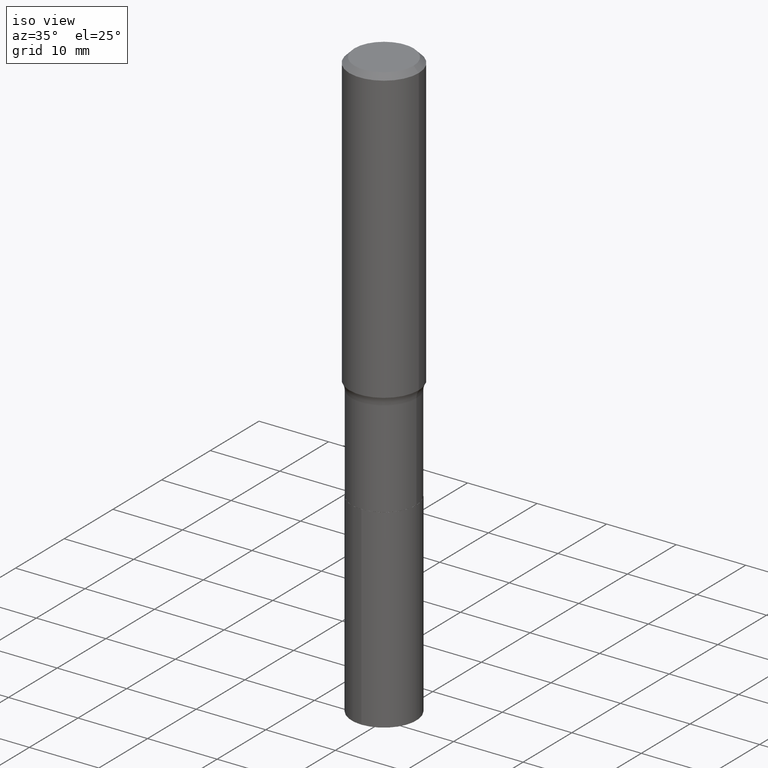
[diagram: clean part render]
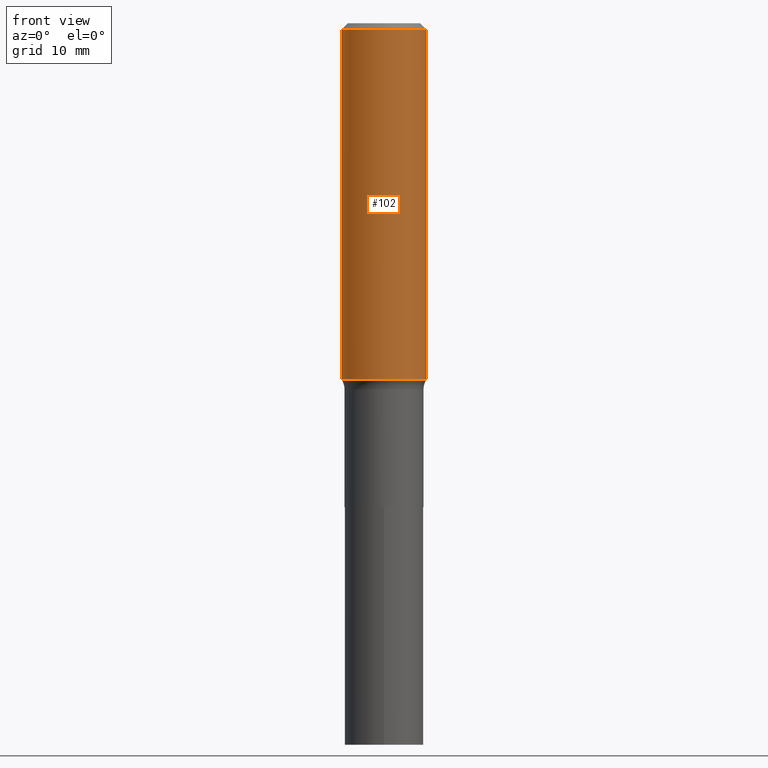
[diagram: tour spotlight — one face highlighted and labeled with its STEP entity id]
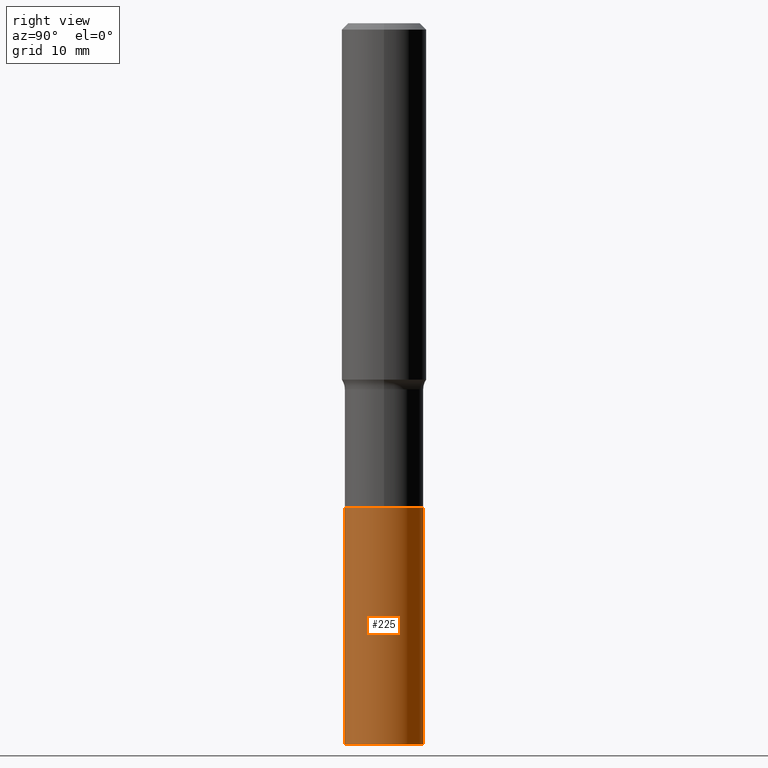
[diagram: tour spotlight — one face highlighted and labeled with its STEP entity id]
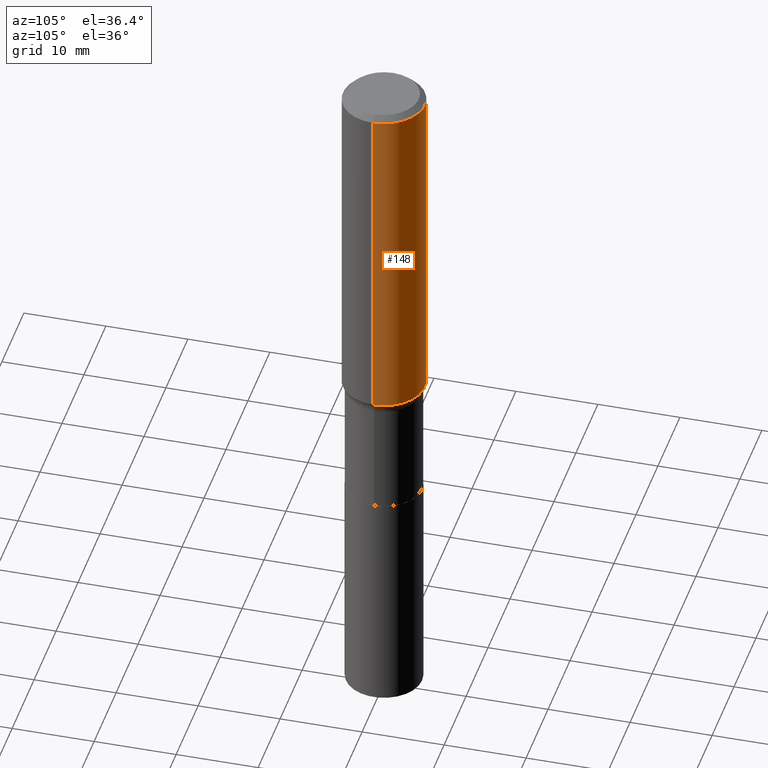
[diagram: tour spotlight — one face highlighted and labeled with its STEP entity id]
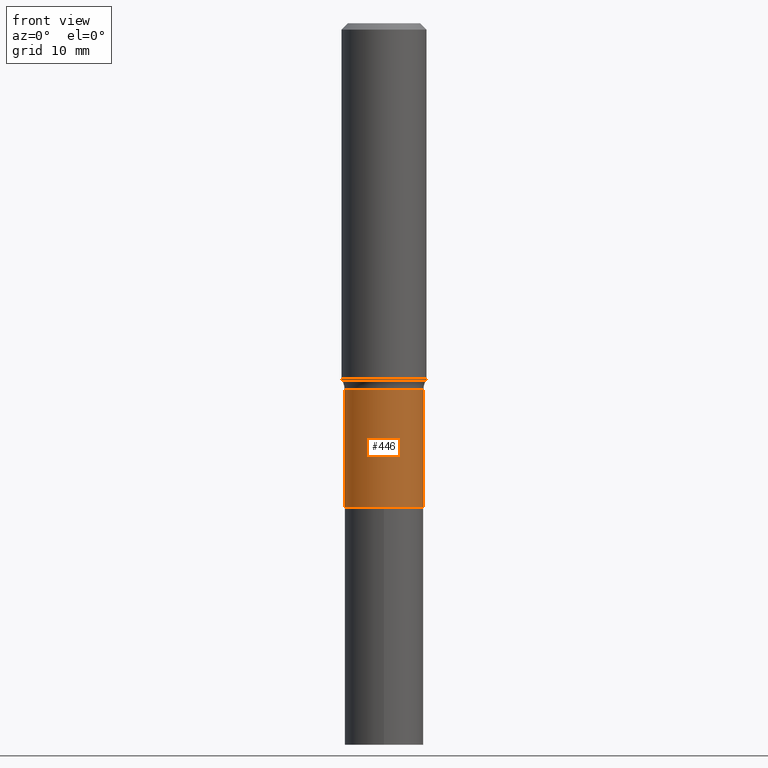
[diagram: tour spotlight — one face highlighted and labeled with its STEP entity id]
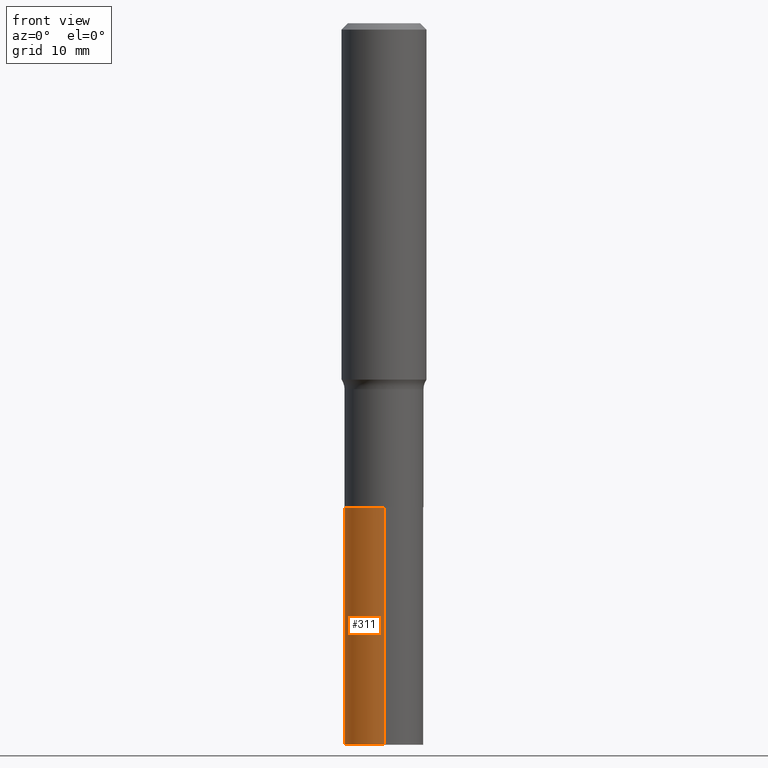
[diagram: tour spotlight — one face highlighted and labeled with its STEP entity id]
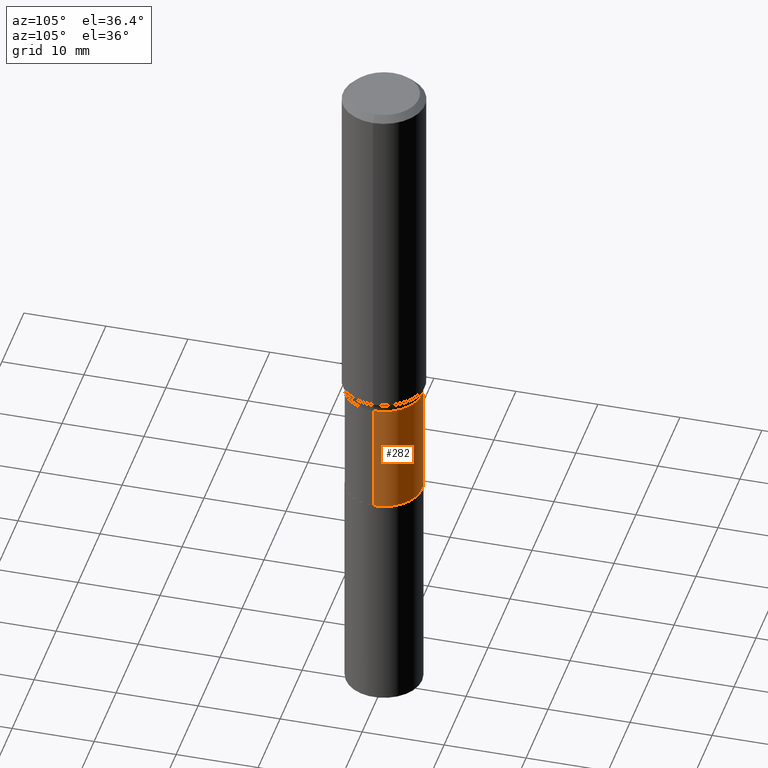
[diagram: tour spotlight — one face highlighted and labeled with its STEP entity id]
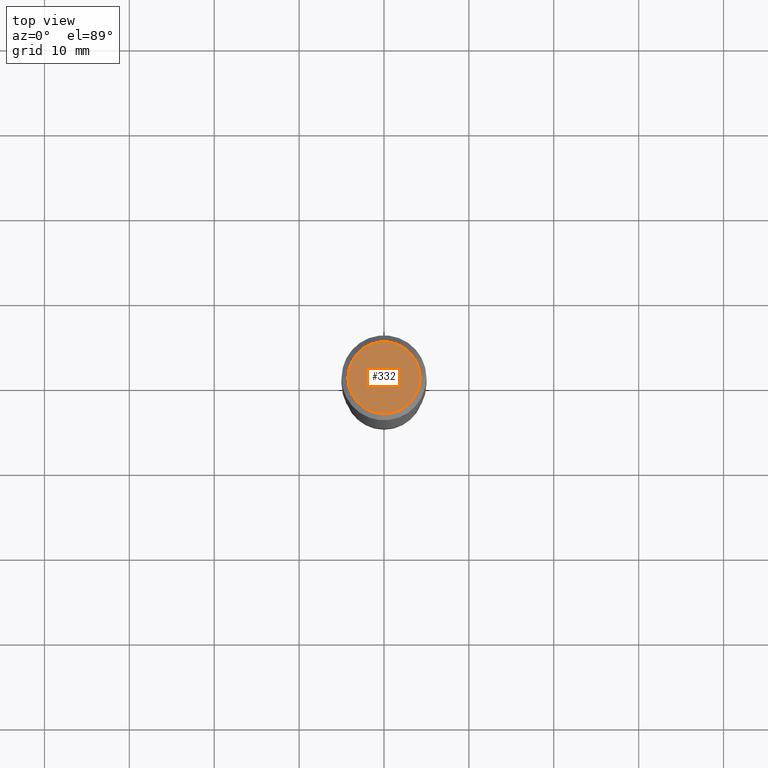
[diagram: tour spotlight — one face highlighted and labeled with its STEP entity id]
A machine part: a face-by-face anatomy tour. The part has 16 B-rep faces; the first image is the clean iso view, then the 7 largest visible faces are spotlighted one at a time (largest first), each with its STEP entity span.

Face 1 — front view, entity #102. In plain terms, the highlighted cylindrical surface (partial cylindrical patch) has radius 5 mm, axis along (-0, 0, 1).
Definition (entity closure, byte-faithful):
#10 = LINE ( 'NONE', #20, #75 ) ;
#15 = CIRCLE ( 'NONE', #283, 0.1968500000000000250 ) ;
#20 = CARTESIAN_POINT ( 'NONE',  ( -0.1968500000000001082, 1.398703375343757985E-15, -9.682923725166787881E-30 ) ) ;
#24 = EDGE_CURVE ( 'NONE', #389, #305, #15, .T. ) ;
#50 = CARTESIAN_POINT ( 'NONE',  ( 0.1968500000000001915, -7.144907158398071295E-15, -1.652682742737339394 ) ) ;
#69 = CARTESIAN_POINT ( 'NONE',  ( 7.220858017463206858E-31, -1.030947152326916240E-16, -0.02952750000000018207 ) ) ;
#73 = DIRECTION ( 'NONE',  ( -2.445468806185136597E-29, 3.491481338843145583E-15, 1.000000000000000000 ) ) ;
#75 = VECTOR ( 'NONE', #415, 39.37007874015748143 ) ;
#93 = CARTESIAN_POINT ( 'NONE',  ( 0.000000000000000000, 0.000000000000000000, 0.000000000000000000 ) ) ;
#102 = ADVANCED_FACE ( 'NONE', ( #135 ), #448, .T. ) ;
#135 = FACE_OUTER_BOUND ( 'NONE', #189, .T. ) ;
#168 = VECTOR ( 'NONE', #294, 39.37007874015748143 ) ;
#174 = VERTEX_POINT ( 'NONE', #50 ) ;
#176 = CARTESIAN_POINT ( 'NONE',  ( 0.1968500000000000250, -1.477690918335233294E-15, -0.02952750000000018207 ) ) ;
#189 = EDGE_LOOP ( 'NONE', ( #454, #397, #345, #331 ) ) ;
#231 = DIRECTION ( 'NONE',  ( -2.445468806185136597E-29, 3.491481338843145583E-15, 1.000000000000000000 ) ) ;
#246 = DIRECTION ( 'NONE',  ( 1.000000000000000000, -6.982962677686265922E-15, 0.000000000000000000 ) ) ;
#279 = CARTESIAN_POINT ( 'NONE',  ( -0.1968500000000001915, -4.371607579951768743E-15, -1.652682742737339394 ) ) ;
#280 = DIRECTION ( 'NONE',  ( -2.445468806185136597E-29, 3.491481338843145583E-15, 1.000000000000000000 ) ) ;
#281 = CARTESIAN_POINT ( 'NONE',  ( -0.1968500000000000250, -1.537999459920351518E-15, -0.02952750000000018207 ) ) ;
#283 = AXIS2_PLACEMENT_3D ( 'NONE', #69, #73, #468 ) ;
#294 = DIRECTION ( 'NONE',  ( -2.445468806185136877E-29, 3.491481338843145188E-15, 1.000000000000000000 ) ) ;
#305 = VERTEX_POINT ( 'NONE', #176 ) ;
#310 = CIRCLE ( 'NONE', #326, 0.1968500000000002192 ) ;
#326 = AXIS2_PLACEMENT_3D ( 'NONE', #449, #280, #246 ) ;
#331 = ORIENTED_EDGE ( 'NONE', *, *, #24, .F. ) ;
#342 = LINE ( 'NONE', #396, #168 ) ;
#344 = EDGE_CURVE ( 'NONE', #458, #174, #310, .T. ) ;
#345 = ORIENTED_EDGE ( 'NONE', *, *, #440, .T. ) ;
#360 = AXIS2_PLACEMENT_3D ( 'NONE', #93, #231, #387 ) ;
#380 = EDGE_CURVE ( 'NONE', #458, #389, #10, .T. ) ;
#387 = DIRECTION ( 'NONE',  ( 1.000000000000000000, -6.982962677686266711E-15, 4.876176775795935793E-29 ) ) ;
#389 = VERTEX_POINT ( 'NONE', #281 ) ;
#396 = CARTESIAN_POINT ( 'NONE',  ( 0.1968500000000001082, -1.374596203102542397E-15, 9.598753983154305062E-30 ) ) ;
#397 = ORIENTED_EDGE ( 'NONE', *, *, #344, .T. ) ;
#415 = DIRECTION ( 'NONE',  ( -2.445468806185136877E-29, 3.491481338843145188E-15, 1.000000000000000000 ) ) ;
#440 = EDGE_CURVE ( 'NONE', #174, #305, #342, .T. ) ;
#448 = CYLINDRICAL_SURFACE ( 'NONE', #360, 0.1968500000000001082 ) ;
#449 = CARTESIAN_POINT ( 'NONE',  ( 4.041584093884658511E-29, -5.770310955295528109E-15, -1.652682742737339394 ) ) ;
#454 = ORIENTED_EDGE ( 'NONE', *, *, #380, .F. ) ;
#458 = VERTEX_POINT ( 'NONE', #279 ) ;
#468 = DIRECTION ( 'NONE',  ( 1.000000000000000000, -6.982962677686265922E-15, 0.000000000000000000 ) ) ;

Face 2 — right view, entity #225. In plain terms, the highlighted cylindrical surface (partial cylindrical patch) has radius 4.6495 mm, axis along (-0, 0, 1).
Definition (entity closure, byte-faithful):
#4 = ORIENTED_EDGE ( 'NONE', *, *, #312, .F. ) ;
#9 = DIRECTION ( 'NONE',  ( -6.982962677686264344E-15, -1.000000000000000000, 2.984810700534567995E-15 ) ) ;
#13 = DIRECTION ( 'NONE',  ( -6.982962677686264344E-15, -1.000000000000000000, 2.984810700534567995E-15 ) ) ;
#16 = CIRCLE ( 'NONE', #211, 0.1830499999999999905 ) ;
#27 = LINE ( 'NONE', #416, #150 ) ;
#39 = DIRECTION ( 'NONE',  ( -6.982962677686264344E-15, -1.000000000000000000, 2.984810700534567995E-15 ) ) ;
#56 = EDGE_CURVE ( 'NONE', #348, #288, #218, .T. ) ;
#68 = DIRECTION ( 'NONE',  ( -2.445425660691205372E-29, 3.491543125646143900E-15, 1.000000000000000000 ) ) ;
#84 = VERTEX_POINT ( 'NONE', #276 ) ;
#99 = DIRECTION ( 'NONE',  ( -2.445425660691205372E-29, 3.491543125646143900E-15, 1.000000000000000000 ) ) ;
#103 = DIRECTION ( 'NONE',  ( -2.445425660691205372E-29, 3.491543125646143900E-15, 1.000000000000000000 ) ) ;
#104 = EDGE_CURVE ( 'NONE', #84, #348, #442, .T. ) ;
#150 = VECTOR ( 'NONE', #209, 39.37007874015748143 ) ;
#155 = AXIS2_PLACEMENT_3D ( 'NONE', #402, #68, #39 ) ;
#157 = AXIS2_PLACEMENT_3D ( 'NONE', #435, #257, #9 ) ;
#162 = ORIENTED_EDGE ( 'NONE', *, *, #104, .T. ) ;
#180 = CYLINDRICAL_SURFACE ( 'NONE', #157, 0.1830499999999999905 ) ;
#202 = CARTESIAN_POINT ( 'NONE',  ( 5.488854735482538769E-29, -7.836629865033439543E-15, -2.244499999999999940 ) ) ;
#209 = DIRECTION ( 'NONE',  ( -2.445425660691205372E-29, 3.491543125646143900E-15, 1.000000000000000000 ) ) ;
#211 = AXIS2_PLACEMENT_3D ( 'NONE', #202, #99, #13 ) ;
#218 = LINE ( 'NONE', #220, #308 ) ;
#220 = CARTESIAN_POINT ( 'NONE',  ( 1.300648477808917754E-15, 0.1830499999999921634, -2.244500000000000384 ) ) ;
#225 = ADVANCED_FACE ( 'NONE', ( #431 ), #180, .T. ) ;
#230 = VERTEX_POINT ( 'NONE', #433 ) ;
#257 = DIRECTION ( 'NONE',  ( -2.445425660691205372E-29, 3.491543125646143900E-15, 1.000000000000000000 ) ) ;
#262 = ORIENTED_EDGE ( 'NONE', *, *, #395, .F. ) ;
#276 = CARTESIAN_POINT ( 'NONE',  ( -1.278231318150389020E-15, -0.1830500000000116478, -3.346499999999999364 ) ) ;
#277 = CARTESIAN_POINT ( 'NONE',  ( 1.300648477808931165E-15, 0.1830499999999883054, -3.346500000000000696 ) ) ;
#288 = VERTEX_POINT ( 'NONE', #452 ) ;
#308 = VECTOR ( 'NONE', #103, 39.37007874015748143 ) ;
#312 = EDGE_CURVE ( 'NONE', #84, #230, #27, .T. ) ;
#313 = EDGE_LOOP ( 'NONE', ( #162, #406, #262, #4 ) ) ;
#348 = VERTEX_POINT ( 'NONE', #277 ) ;
#395 = EDGE_CURVE ( 'NONE', #230, #288, #16, .T. ) ;
#402 = CARTESIAN_POINT ( 'NONE',  ( 8.183713813564248503E-29, -1.168431038949549098E-14, -3.346499999999999808 ) ) ;
#406 = ORIENTED_EDGE ( 'NONE', *, *, #56, .T. ) ;
#416 = CARTESIAN_POINT ( 'NONE',  ( -1.278231318150415841E-15, -0.1830500000000077898, -2.244499999999999051 ) ) ;
#431 = FACE_OUTER_BOUND ( 'NONE', #313, .T. ) ;
#433 = CARTESIAN_POINT ( 'NONE',  ( -1.278231318150415841E-15, -0.1830500000000077898, -2.244499999999999051 ) ) ;
#435 = CARTESIAN_POINT ( 'NONE',  ( 5.488854735482538769E-29, -7.836629865033439543E-15, -2.244499999999999940 ) ) ;
#442 = CIRCLE ( 'NONE', #155, 0.1830499999999999905 ) ;
#452 = CARTESIAN_POINT ( 'NONE',  ( 1.300648477808944970E-15, 0.1830499999999921634, -2.244500000000000384 ) ) ;

Face 3 — auxiliary view, entity #148. In plain terms, the highlighted cylindrical surface (partial cylindrical patch) has radius 5 mm, axis along (-0, 0, 1).
Definition (entity closure, byte-faithful):
#10 = LINE ( 'NONE', #20, #75 ) ;
#17 = DIRECTION ( 'NONE',  ( -2.445468806185136597E-29, 3.491481338843145583E-15, 1.000000000000000000 ) ) ;
#20 = CARTESIAN_POINT ( 'NONE',  ( -0.1968500000000001082, 1.398703375343757985E-15, -9.682923725166787881E-30 ) ) ;
#33 = AXIS2_PLACEMENT_3D ( 'NONE', #86, #318, #315 ) ;
#38 = DIRECTION ( 'NONE',  ( -2.445468806185136597E-29, 3.491481338843145583E-15, 1.000000000000000000 ) ) ;
#50 = CARTESIAN_POINT ( 'NONE',  ( 0.1968500000000001915, -7.144907158398071295E-15, -1.652682742737339394 ) ) ;
#62 = CIRCLE ( 'NONE', #210, 0.1968500000000002192 ) ;
#75 = VECTOR ( 'NONE', #415, 39.37007874015748143 ) ;
#86 = CARTESIAN_POINT ( 'NONE',  ( 7.220858017463206858E-31, -1.030947152326916240E-16, -0.02952750000000018207 ) ) ;
#96 = FACE_OUTER_BOUND ( 'NONE', #278, .T. ) ;
#126 = CARTESIAN_POINT ( 'NONE',  ( 0.000000000000000000, 0.000000000000000000, 0.000000000000000000 ) ) ;
#132 = EDGE_CURVE ( 'NONE', #174, #458, #62, .T. ) ;
#138 = ORIENTED_EDGE ( 'NONE', *, *, #440, .F. ) ;
#148 = ADVANCED_FACE ( 'NONE', ( #96 ), #346, .T. ) ;
#168 = VECTOR ( 'NONE', #294, 39.37007874015748143 ) ;
#174 = VERTEX_POINT ( 'NONE', #50 ) ;
#176 = CARTESIAN_POINT ( 'NONE',  ( 0.1968500000000000250, -1.477690918335233294E-15, -0.02952750000000018207 ) ) ;
#210 = AXIS2_PLACEMENT_3D ( 'NONE', #366, #38, #466 ) ;
#278 = EDGE_LOOP ( 'NONE', ( #383, #351, #377, #138 ) ) ;
#279 = CARTESIAN_POINT ( 'NONE',  ( -0.1968500000000001915, -4.371607579951768743E-15, -1.652682742737339394 ) ) ;
#281 = CARTESIAN_POINT ( 'NONE',  ( -0.1968500000000000250, -1.537999459920351518E-15, -0.02952750000000018207 ) ) ;
#294 = DIRECTION ( 'NONE',  ( -2.445468806185136877E-29, 3.491481338843145188E-15, 1.000000000000000000 ) ) ;
#305 = VERTEX_POINT ( 'NONE', #176 ) ;
#309 = DIRECTION ( 'NONE',  ( 1.000000000000000000, -6.982962677686266711E-15, 4.876176775795935793E-29 ) ) ;
#315 = DIRECTION ( 'NONE',  ( 1.000000000000000000, -6.982962677686265922E-15, 0.000000000000000000 ) ) ;
#318 = DIRECTION ( 'NONE',  ( -2.445468806185136597E-29, 3.491481338843145583E-15, 1.000000000000000000 ) ) ;
#342 = LINE ( 'NONE', #396, #168 ) ;
#346 = CYLINDRICAL_SURFACE ( 'NONE', #427, 0.1968500000000001082 ) ;
#351 = ORIENTED_EDGE ( 'NONE', *, *, #380, .T. ) ;
#366 = CARTESIAN_POINT ( 'NONE',  ( 4.041584093884658511E-29, -5.770310955295528109E-15, -1.652682742737339394 ) ) ;
#376 = CIRCLE ( 'NONE', #33, 0.1968500000000000250 ) ;
#377 = ORIENTED_EDGE ( 'NONE', *, *, #411, .F. ) ;
#380 = EDGE_CURVE ( 'NONE', #458, #389, #10, .T. ) ;
#383 = ORIENTED_EDGE ( 'NONE', *, *, #132, .T. ) ;
#389 = VERTEX_POINT ( 'NONE', #281 ) ;
#396 = CARTESIAN_POINT ( 'NONE',  ( 0.1968500000000001082, -1.374596203102542397E-15, 9.598753983154305062E-30 ) ) ;
#411 = EDGE_CURVE ( 'NONE', #305, #389, #376, .T. ) ;
#415 = DIRECTION ( 'NONE',  ( -2.445468806185136877E-29, 3.491481338843145188E-15, 1.000000000000000000 ) ) ;
#427 = AXIS2_PLACEMENT_3D ( 'NONE', #126, #17, #309 ) ;
#440 = EDGE_CURVE ( 'NONE', #174, #305, #342, .T. ) ;
#458 = VERTEX_POINT ( 'NONE', #279 ) ;
#466 = DIRECTION ( 'NONE',  ( 1.000000000000000000, -6.982962677686265922E-15, 0.000000000000000000 ) ) ;

Face 4 — front view, entity #446. In plain terms, the highlighted cylindrical surface (partial cylindrical patch) has radius 4.6495 mm, axis along (-0, 0, 1).
Definition (entity closure, byte-faithful):
#7 = VECTOR ( 'NONE', #77, 39.37007874015748143 ) ;
#25 = CARTESIAN_POINT ( 'NONE',  ( 0.1830499999999999905, -1.278231318150470864E-15, 8.925841588094459454E-30 ) ) ;
#30 = DIRECTION ( 'NONE',  ( -2.445468806185136877E-29, 3.491481338843145188E-15, 1.000000000000000000 ) ) ;
#36 = CARTESIAN_POINT ( 'NONE',  ( -0.1830500000000000183, -5.580362944783206907E-15, -2.243999999999999773 ) ) ;
#43 = VERTEX_POINT ( 'NONE', #36 ) ;
#55 = LINE ( 'NONE', #120, #7 ) ;
#59 = EDGE_CURVE ( 'NONE', #43, #462, #386, .T. ) ;
#77 = DIRECTION ( 'NONE',  ( -2.445468806185136877E-29, 3.491481338843145188E-15, 1.000000000000000000 ) ) ;
#78 = EDGE_LOOP ( 'NONE', ( #400, #413, #445, #198 ) ) ;
#83 = EDGE_CURVE ( 'NONE', #243, #233, #301, .T. ) ;
#89 = DIRECTION ( 'NONE',  ( -2.445468806185136597E-29, 3.491481338843145583E-15, 1.000000000000000000 ) ) ;
#100 = AXIS2_PLACEMENT_3D ( 'NONE', #367, #215, #182 ) ;
#105 = CARTESIAN_POINT ( 'NONE',  ( 0.1830499999999999350, -7.205370038970595453E-15, -1.697599999999999998 ) ) ;
#120 = CARTESIAN_POINT ( 'NONE',  ( -0.1830499999999999905, 1.300648477808863323E-15, -9.004110682711603988E-30 ) ) ;
#136 = DIRECTION ( 'NONE',  ( 1.000000000000000000, -6.982962677686265922E-15, 4.876176775795935232E-29 ) ) ;
#141 = FACE_OUTER_BOUND ( 'NONE', #78, .T. ) ;
#149 = CARTESIAN_POINT ( 'NONE',  ( 4.151427845379887216E-29, -5.927138720820123997E-15, -1.697599999999999998 ) ) ;
#177 = AXIS2_PLACEMENT_3D ( 'NONE', #289, #456, #136 ) ;
#182 = DIRECTION ( 'NONE',  ( 1.000000000000000000, -6.982962677686264344E-15, 0.000000000000000000 ) ) ;
#198 = ORIENTED_EDGE ( 'NONE', *, *, #83, .F. ) ;
#215 = DIRECTION ( 'NONE',  ( -2.445468806185136597E-29, 3.491481338843145583E-15, 1.000000000000000000 ) ) ;
#233 = VERTEX_POINT ( 'NONE', #105 ) ;
#243 = VERTEX_POINT ( 'NONE', #252 ) ;
#252 = CARTESIAN_POINT ( 'NONE',  ( -0.1830499999999999350, -5.580362944783206907E-15, -1.697599999999999998 ) ) ;
#289 = CARTESIAN_POINT ( 'NONE',  ( 0.000000000000000000, 0.000000000000000000, 0.000000000000000000 ) ) ;
#298 = EDGE_CURVE ( 'NONE', #462, #233, #384, .T. ) ;
#301 = CIRCLE ( 'NONE', #371, 0.1830499999999999350 ) ;
#365 = EDGE_CURVE ( 'NONE', #43, #243, #55, .T. ) ;
#367 = CARTESIAN_POINT ( 'NONE',  ( 5.487632001079445967E-29, -7.834884124364017250E-15, -2.243999999999999773 ) ) ;
#371 = AXIS2_PLACEMENT_3D ( 'NONE', #149, #89, #385 ) ;
#384 = LINE ( 'NONE', #25, #428 ) ;
#385 = DIRECTION ( 'NONE',  ( 1.000000000000000000, -6.982962677686267499E-15, 0.000000000000000000 ) ) ;
#386 = CIRCLE ( 'NONE', #100, 0.1830500000000000183 ) ;
#400 = ORIENTED_EDGE ( 'NONE', *, *, #365, .F. ) ;
#413 = ORIENTED_EDGE ( 'NONE', *, *, #59, .T. ) ;
#428 = VECTOR ( 'NONE', #30, 39.37007874015748143 ) ;
#445 = ORIENTED_EDGE ( 'NONE', *, *, #298, .T. ) ;
#446 = ADVANCED_FACE ( 'NONE', ( #141 ), #453, .T. ) ;
#453 = CYLINDRICAL_SURFACE ( 'NONE', #177, 0.1830499999999999905 ) ;
#456 = DIRECTION ( 'NONE',  ( -2.445468806185136597E-29, 3.491481338843145583E-15, 1.000000000000000000 ) ) ;
#462 = VERTEX_POINT ( 'NONE', #467 ) ;
#467 = CARTESIAN_POINT ( 'NONE',  ( 0.1830500000000000183, -9.113115442514488706E-15, -2.243999999999999773 ) ) ;

Face 5 — front view, entity #311. In plain terms, the highlighted cylindrical surface (partial cylindrical patch) has radius 4.6495 mm, axis along (-0, 0, 1).
Definition (entity closure, byte-faithful):
#18 = CARTESIAN_POINT ( 'NONE',  ( 5.488854735482538769E-29, -7.836629865033439543E-15, -2.244499999999999940 ) ) ;
#27 = LINE ( 'NONE', #416, #150 ) ;
#34 = DIRECTION ( 'NONE',  ( -2.445425660691205372E-29, 3.491543125646143900E-15, 1.000000000000000000 ) ) ;
#56 = EDGE_CURVE ( 'NONE', #348, #288, #218, .T. ) ;
#64 = DIRECTION ( 'NONE',  ( -2.445425660691205372E-29, 3.491543125646143900E-15, 1.000000000000000000 ) ) ;
#71 = EDGE_CURVE ( 'NONE', #348, #84, #353, .T. ) ;
#84 = VERTEX_POINT ( 'NONE', #276 ) ;
#88 = DIRECTION ( 'NONE',  ( -6.982962677686264344E-15, -1.000000000000000000, 2.984810700534567995E-15 ) ) ;
#103 = DIRECTION ( 'NONE',  ( -2.445425660691205372E-29, 3.491543125646143900E-15, 1.000000000000000000 ) ) ;
#111 = AXIS2_PLACEMENT_3D ( 'NONE', #323, #64, #418 ) ;
#124 = CIRCLE ( 'NONE', #354, 0.1830499999999999905 ) ;
#146 = DIRECTION ( 'NONE',  ( -6.982962677686264344E-15, -1.000000000000000000, 2.984810700534567995E-15 ) ) ;
#150 = VECTOR ( 'NONE', #209, 39.37007874015748143 ) ;
#209 = DIRECTION ( 'NONE',  ( -2.445425660691205372E-29, 3.491543125646143900E-15, 1.000000000000000000 ) ) ;
#218 = LINE ( 'NONE', #220, #308 ) ;
#220 = CARTESIAN_POINT ( 'NONE',  ( 1.300648477808917754E-15, 0.1830499999999921634, -2.244500000000000384 ) ) ;
#229 = EDGE_LOOP ( 'NONE', ( #441, #408, #391, #248 ) ) ;
#230 = VERTEX_POINT ( 'NONE', #433 ) ;
#238 = DIRECTION ( 'NONE',  ( -2.445425660691205372E-29, 3.491543125646143900E-15, 1.000000000000000000 ) ) ;
#248 = ORIENTED_EDGE ( 'NONE', *, *, #297, .F. ) ;
#276 = CARTESIAN_POINT ( 'NONE',  ( -1.278231318150389020E-15, -0.1830500000000116478, -3.346499999999999364 ) ) ;
#277 = CARTESIAN_POINT ( 'NONE',  ( 1.300648477808931165E-15, 0.1830499999999883054, -3.346500000000000696 ) ) ;
#288 = VERTEX_POINT ( 'NONE', #452 ) ;
#297 = EDGE_CURVE ( 'NONE', #288, #230, #124, .T. ) ;
#308 = VECTOR ( 'NONE', #103, 39.37007874015748143 ) ;
#311 = ADVANCED_FACE ( 'NONE', ( #393 ), #455, .T. ) ;
#312 = EDGE_CURVE ( 'NONE', #84, #230, #27, .T. ) ;
#323 = CARTESIAN_POINT ( 'NONE',  ( 5.488854735482538769E-29, -7.836629865033439543E-15, -2.244499999999999940 ) ) ;
#348 = VERTEX_POINT ( 'NONE', #277 ) ;
#353 = CIRCLE ( 'NONE', #410, 0.1830499999999999905 ) ;
#354 = AXIS2_PLACEMENT_3D ( 'NONE', #18, #238, #88 ) ;
#359 = CARTESIAN_POINT ( 'NONE',  ( 8.183713813564248503E-29, -1.168431038949549098E-14, -3.346499999999999808 ) ) ;
#391 = ORIENTED_EDGE ( 'NONE', *, *, #312, .T. ) ;
#393 = FACE_OUTER_BOUND ( 'NONE', #229, .T. ) ;
#408 = ORIENTED_EDGE ( 'NONE', *, *, #71, .T. ) ;
#410 = AXIS2_PLACEMENT_3D ( 'NONE', #359, #34, #146 ) ;
#416 = CARTESIAN_POINT ( 'NONE',  ( -1.278231318150415841E-15, -0.1830500000000077898, -2.244499999999999051 ) ) ;
#418 = DIRECTION ( 'NONE',  ( -6.982962677686264344E-15, -1.000000000000000000, 2.984810700534567995E-15 ) ) ;
#433 = CARTESIAN_POINT ( 'NONE',  ( -1.278231318150415841E-15, -0.1830500000000077898, -2.244499999999999051 ) ) ;
#441 = ORIENTED_EDGE ( 'NONE', *, *, #56, .F. ) ;
#452 = CARTESIAN_POINT ( 'NONE',  ( 1.300648477808944970E-15, 0.1830499999999921634, -2.244500000000000384 ) ) ;
#455 = CYLINDRICAL_SURFACE ( 'NONE', #111, 0.1830499999999999905 ) ;

Face 6 — auxiliary view, entity #282. In plain terms, the highlighted cylindrical surface (partial cylindrical patch) has radius 4.6495 mm, axis along (-0, 0, 1).
Definition (entity closure, byte-faithful):
#7 = VECTOR ( 'NONE', #77, 39.37007874015748143 ) ;
#25 = CARTESIAN_POINT ( 'NONE',  ( 0.1830499999999999905, -1.278231318150470864E-15, 8.925841588094459454E-30 ) ) ;
#30 = DIRECTION ( 'NONE',  ( -2.445468806185136877E-29, 3.491481338843145188E-15, 1.000000000000000000 ) ) ;
#36 = CARTESIAN_POINT ( 'NONE',  ( -0.1830500000000000183, -5.580362944783206907E-15, -2.243999999999999773 ) ) ;
#37 = ORIENTED_EDGE ( 'NONE', *, *, #365, .T. ) ;
#43 = VERTEX_POINT ( 'NONE', #36 ) ;
#55 = LINE ( 'NONE', #120, #7 ) ;
#58 = AXIS2_PLACEMENT_3D ( 'NONE', #127, #79, #134 ) ;
#77 = DIRECTION ( 'NONE',  ( -2.445468806185136877E-29, 3.491481338843145188E-15, 1.000000000000000000 ) ) ;
#79 = DIRECTION ( 'NONE',  ( -2.445468806185136597E-29, 3.491481338843145583E-15, 1.000000000000000000 ) ) ;
#91 = DIRECTION ( 'NONE',  ( 1.000000000000000000, -6.982962677686264344E-15, 0.000000000000000000 ) ) ;
#105 = CARTESIAN_POINT ( 'NONE',  ( 0.1830499999999999350, -7.205370038970595453E-15, -1.697599999999999998 ) ) ;
#113 = CYLINDRICAL_SURFACE ( 'NONE', #58, 0.1830499999999999905 ) ;
#120 = CARTESIAN_POINT ( 'NONE',  ( -0.1830499999999999905, 1.300648477808863323E-15, -9.004110682711603988E-30 ) ) ;
#127 = CARTESIAN_POINT ( 'NONE',  ( 0.000000000000000000, 0.000000000000000000, 0.000000000000000000 ) ) ;
#129 = CIRCLE ( 'NONE', #450, 0.1830500000000000183 ) ;
#134 = DIRECTION ( 'NONE',  ( 1.000000000000000000, -6.982962677686265922E-15, 4.876176775795935232E-29 ) ) ;
#137 = CIRCLE ( 'NONE', #245, 0.1830499999999999350 ) ;
#159 = EDGE_CURVE ( 'NONE', #462, #43, #129, .T. ) ;
#181 = FACE_OUTER_BOUND ( 'NONE', #322, .T. ) ;
#204 = DIRECTION ( 'NONE',  ( -2.445468806185136597E-29, 3.491481338843145583E-15, 1.000000000000000000 ) ) ;
#233 = VERTEX_POINT ( 'NONE', #105 ) ;
#243 = VERTEX_POINT ( 'NONE', #252 ) ;
#245 = AXIS2_PLACEMENT_3D ( 'NONE', #349, #204, #388 ) ;
#252 = CARTESIAN_POINT ( 'NONE',  ( -0.1830499999999999350, -5.580362944783206907E-15, -1.697599999999999998 ) ) ;
#253 = ORIENTED_EDGE ( 'NONE', *, *, #343, .F. ) ;
#261 = ORIENTED_EDGE ( 'NONE', *, *, #159, .T. ) ;
#272 = ORIENTED_EDGE ( 'NONE', *, *, #298, .F. ) ;
#282 = ADVANCED_FACE ( 'NONE', ( #181 ), #113, .T. ) ;
#298 = EDGE_CURVE ( 'NONE', #462, #233, #384, .T. ) ;
#314 = DIRECTION ( 'NONE',  ( -2.445468806185136597E-29, 3.491481338843145583E-15, 1.000000000000000000 ) ) ;
#322 = EDGE_LOOP ( 'NONE', ( #261, #37, #253, #272 ) ) ;
#343 = EDGE_CURVE ( 'NONE', #233, #243, #137, .T. ) ;
#349 = CARTESIAN_POINT ( 'NONE',  ( 4.151427845379887216E-29, -5.927138720820123997E-15, -1.697599999999999998 ) ) ;
#365 = EDGE_CURVE ( 'NONE', #43, #243, #55, .T. ) ;
#384 = LINE ( 'NONE', #25, #428 ) ;
#388 = DIRECTION ( 'NONE',  ( 1.000000000000000000, -6.982962677686267499E-15, 0.000000000000000000 ) ) ;
#417 = CARTESIAN_POINT ( 'NONE',  ( 5.487632001079445967E-29, -7.834884124364017250E-15, -2.243999999999999773 ) ) ;
#428 = VECTOR ( 'NONE', #30, 39.37007874015748143 ) ;
#450 = AXIS2_PLACEMENT_3D ( 'NONE', #417, #314, #91 ) ;
#462 = VERTEX_POINT ( 'NONE', #467 ) ;
#467 = CARTESIAN_POINT ( 'NONE',  ( 0.1830500000000000183, -9.113115442514488706E-15, -2.243999999999999773 ) ) ;

Face 7 — top view, entity #332. In plain terms, the highlighted planar face has unit normal (0, -0, -1).
Definition (entity closure, byte-faithful):
#41 = AXIS2_PLACEMENT_3D ( 'NONE', #179, #101, #147 ) ;
#52 = DIRECTION ( 'NONE',  ( 1.000000000000000000, -6.982962677686267499E-15, 4.876294436782262290E-29 ) ) ;
#57 = DIRECTION ( 'NONE',  ( 2.438088387897960049E-29, -3.491481338843145188E-15, -1.000000000000000000 ) ) ;
#61 = CARTESIAN_POINT ( 'NONE',  ( 0.1673224999999999851, -1.300749711163072397E-15, 4.096137381456741925E-18 ) ) ;
#66 = CIRCLE ( 'NONE', #41, 0.1673224999999999851 ) ;
#81 = ORIENTED_EDGE ( 'NONE', *, *, #426, .T. ) ;
#90 = FACE_OUTER_BOUND ( 'NONE', #190, .T. ) ;
#101 = DIRECTION ( 'NONE',  ( -2.445468806185136597E-29, 3.491481338843145583E-15, 1.000000000000000000 ) ) ;
#131 = AXIS2_PLACEMENT_3D ( 'NONE', #169, #240, #52 ) ;
#140 = DIRECTION ( 'NONE',  ( -1.000000000000000000, 6.982962677686265922E-15, -4.876176775795935793E-29 ) ) ;
#142 = ORIENTED_EDGE ( 'NONE', *, *, #273, .T. ) ;
#144 = VERTEX_POINT ( 'NONE', #300 ) ;
#147 = DIRECTION ( 'NONE',  ( 1.000000000000000000, -6.982962677686267499E-15, 4.876294436782262290E-29 ) ) ;
#169 = CARTESIAN_POINT ( 'NONE',  ( -1.001697619218021790E-46, 1.430158722866389718E-32, 4.096137381448108366E-18 ) ) ;
#179 = CARTESIAN_POINT ( 'NONE',  ( -1.001697619218021790E-46, 1.430158722866389718E-32, 4.096137381448108366E-18 ) ) ;
#190 = EDGE_LOOP ( 'NONE', ( #142, #81 ) ) ;
#192 = CIRCLE ( 'NONE', #131, 0.1673224999999999851 ) ;
#206 = PLANE ( 'NONE',  #284 ) ;
#240 = DIRECTION ( 'NONE',  ( -2.445468806185136597E-29, 3.491481338843145583E-15, 1.000000000000000000 ) ) ;
#244 = CARTESIAN_POINT ( 'NONE',  ( -5.008488096090108951E-47, 7.150793614331948590E-33, 2.048068690724054183E-18 ) ) ;
#273 = EDGE_CURVE ( 'NONE', #144, #339, #66, .T. ) ;
#284 = AXIS2_PLACEMENT_3D ( 'NONE', #244, #57, #140 ) ;
#300 = CARTESIAN_POINT ( 'NONE',  ( -0.1673224999999999851, 1.219954130253505263E-15, 4.096137381439757534E-18 ) ) ;
#332 = ADVANCED_FACE ( 'NONE', ( #90 ), #206, .F. ) ;
#339 = VERTEX_POINT ( 'NONE', #61 ) ;
#426 = EDGE_CURVE ( 'NONE', #339, #144, #192, .T. ) ;